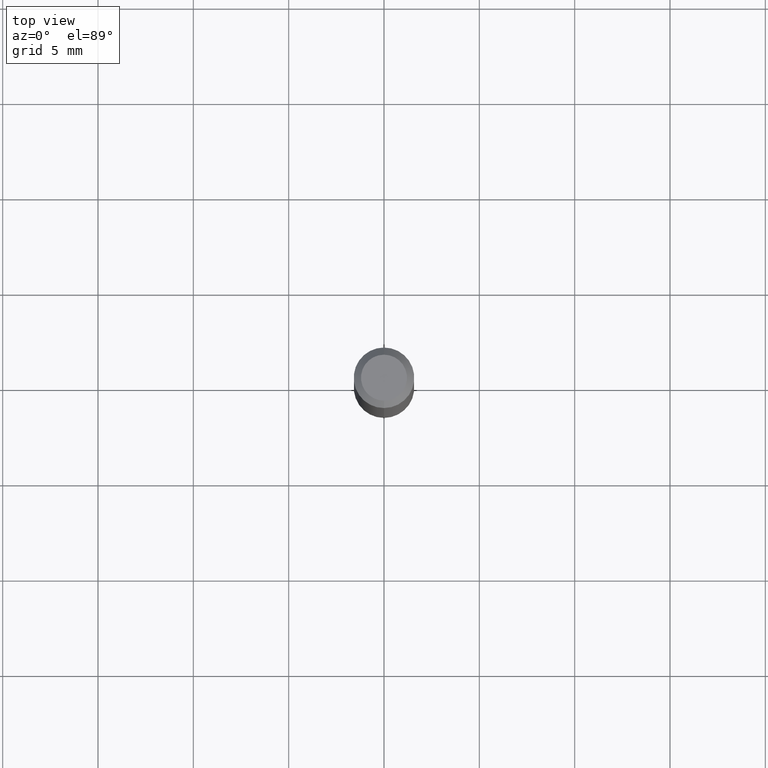
[diagram: clean part render]
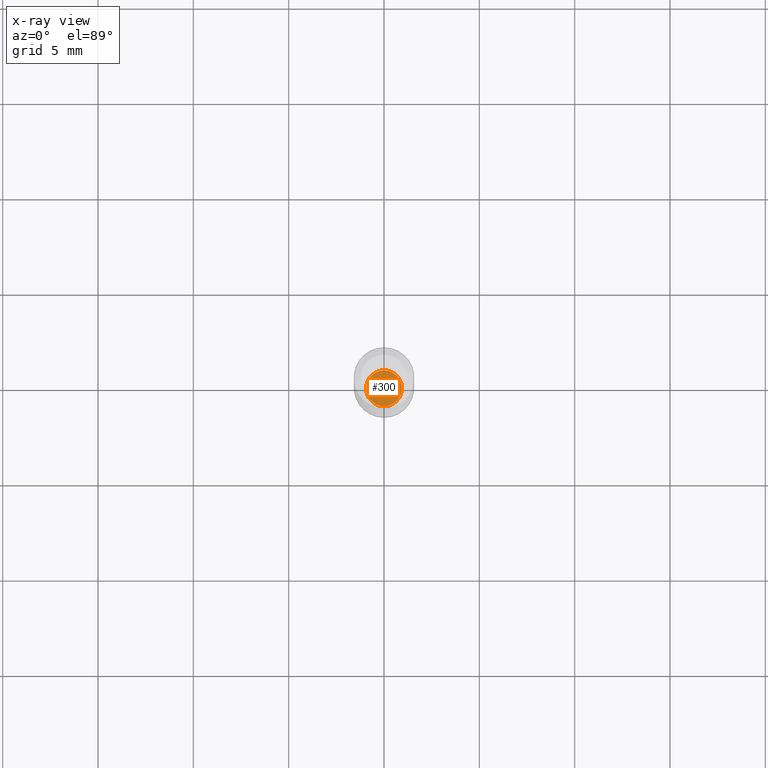
[diagram: x-ray — body ghosted, one internal face saturated and labeled with its STEP entity id]
A machine part, top view, then the same camera in x-ray: the body is ghosted and one INTERNAL B-rep face — a face not visible from any outside direction — is saturated and labeled: STEP entity #300.
In plain terms, the highlighted planar face has unit normal (-0, 0, 1).
Its self-contained STEP definition (entity closure, byte-faithful):
#50 = VERTEX_POINT ( 'NONE', #179 ) ;
#69 = DIRECTION ( 'NONE',  ( -6.982962677686265133E-15, -1.000000000000000000, 0.000000000000000000 ) ) ;
#77 = EDGE_CURVE ( 'NONE', #264, #50, #123, .T. ) ;
#110 = EDGE_CURVE ( 'NONE', #50, #264, #149, .T. ) ;
#121 = ORIENTED_EDGE ( 'NONE', *, *, #110, .F. ) ;
#123 = CIRCLE ( 'NONE', #386, 0.03699999999999999817 ) ;
#129 = FACE_OUTER_BOUND ( 'NONE', #342, .T. ) ;
#149 = CIRCLE ( 'NONE', #439, 0.03699999999999999817 ) ;
#178 = DIRECTION ( 'NONE',  ( -2.445363330842566599E-29, 3.491632385536988923E-15, 1.000000000000000000 ) ) ;
#179 = CARTESIAN_POINT ( 'NONE',  ( 2.646771690706681720E-16, 0.03699999999999554340, -1.275000000000000133 ) ) ;
#188 = DIRECTION ( 'NONE',  ( -2.445363330842566879E-29, 3.491632385536988923E-15, 1.000000000000000000 ) ) ;
#209 = ORIENTED_EDGE ( 'NONE', *, *, #77, .F. ) ;
#215 = DIRECTION ( 'NONE',  ( -6.982962677686265922E-15, -1.000000000000000000, 3.491632385536988923E-15 ) ) ;
#221 = CARTESIAN_POINT ( 'NONE',  ( -2.583696190743606373E-16, -0.03700000000000444600, -1.275000000000000133 ) ) ;
#230 = CARTESIAN_POINT ( 'NONE',  ( 3.117838246824272799E-29, -4.451831291559661005E-15, -1.275000000000000133 ) ) ;
#248 = PLANE ( 'NONE',  #259 ) ;
#259 = AXIS2_PLACEMENT_3D ( 'NONE', #332, #178, #215 ) ;
#264 = VERTEX_POINT ( 'NONE', #221 ) ;
#300 = ADVANCED_FACE ( 'NONE', ( #129 ), #248, .F. ) ;
#332 = CARTESIAN_POINT ( 'NONE',  ( 3.117838246824272799E-29, -4.451831291559661005E-15, -1.275000000000000133 ) ) ;
#342 = EDGE_LOOP ( 'NONE', ( #209, #121 ) ) ;
#375 = DIRECTION ( 'NONE',  ( -6.982962677686265133E-15, -1.000000000000000000, 0.000000000000000000 ) ) ;
#386 = AXIS2_PLACEMENT_3D ( 'NONE', #450, #414, #375 ) ;
#414 = DIRECTION ( 'NONE',  ( -2.445363330842566879E-29, 3.491632385536988923E-15, 1.000000000000000000 ) ) ;
#439 = AXIS2_PLACEMENT_3D ( 'NONE', #230, #188, #69 ) ;
#450 = CARTESIAN_POINT ( 'NONE',  ( 3.117838246824272799E-29, -4.451831291559661005E-15, -1.275000000000000133 ) ) ;